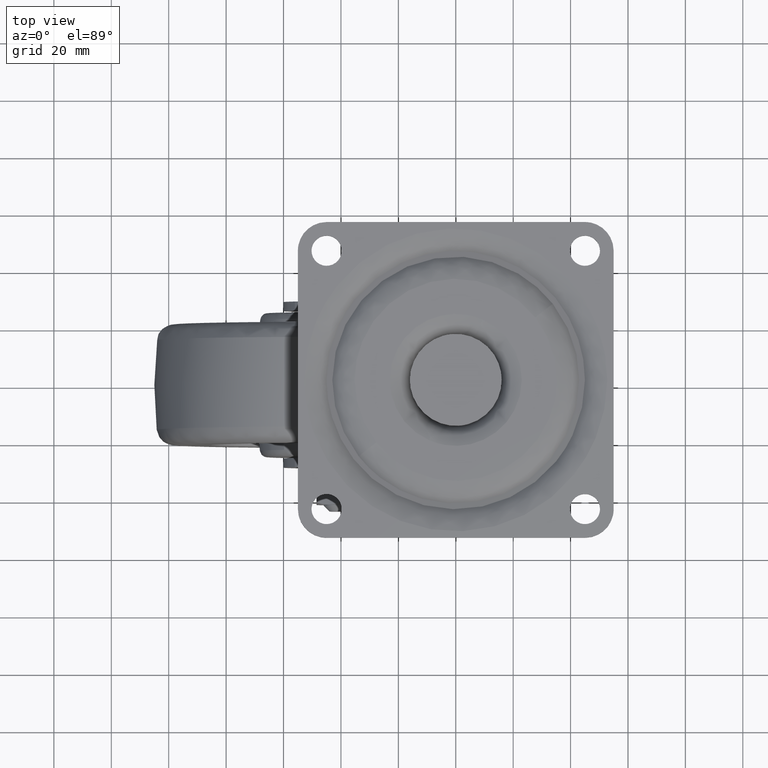
[diagram: clean part render]
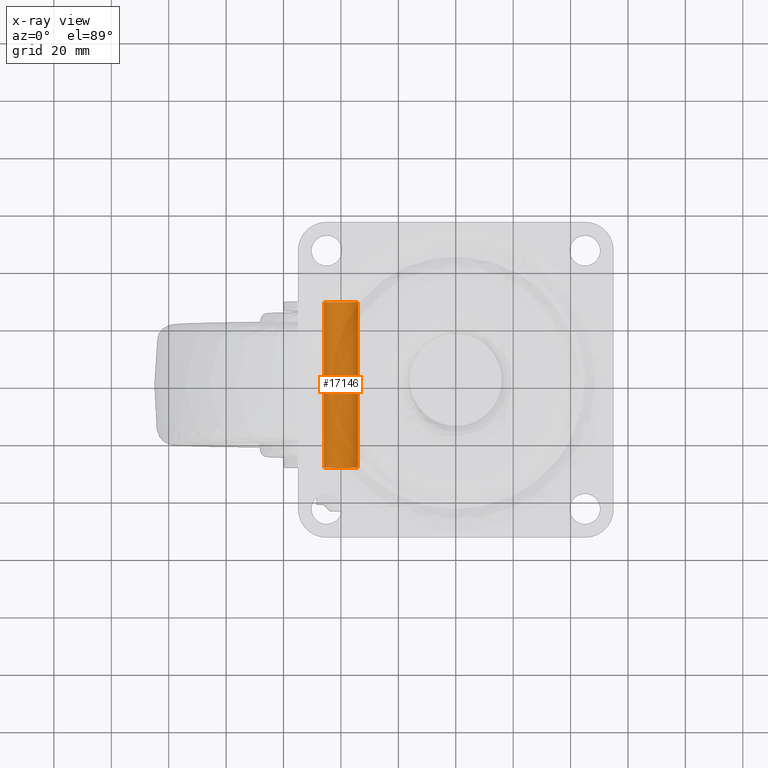
[diagram: x-ray — body ghosted, one internal face saturated and labeled with its STEP entity id]
A machine part, top view, then the same camera in x-ray: the body is ghosted and one INTERNAL B-rep face — a face not visible from any outside direction — is saturated and labeled: STEP entity #17146.
In plain terms, the highlighted face is a freeform B-spline surface patch.
Its self-contained STEP definition (entity closure, byte-faithful):
#17013=CARTESIAN_POINT('',(-40.0,-28.850000000000001,-106.0));
#17014=VERTEX_POINT('',#17013);
#17015=CARTESIAN_POINT('',(-45.988808790512337,-28.850000000000001,-100.366291237517400));
#17016=VERTEX_POINT('',#17015);
#17017=CARTESIAN_POINT('',(-40.0,-28.850000000000001,-106.0));
#17018=CARTESIAN_POINT('',(-45.644236401143068,-28.850000000000005,-106.000000000000010));
#17019=CARTESIAN_POINT('',(-45.988808790512344,-28.849999999999998,-100.366291237517430));
#17027=(BOUNDED_CURVE()B_SPLINE_CURVE(2,(#17017,#17018,#17019),.UNSPECIFIED.,.F.,.U.)B_SPLINE_CURVE_WITH_KNOTS((3,3),(0.500000000000000,0.739332962233086),.UNSPECIFIED.)CURVE()GEOMETRIC_REPRESENTATION_ITEM()RATIONAL_B_SPLINE_CURVE((1.0,0.719603993293572,0.976072041654165))REPRESENTATION_ITEM(''));
#17028=EDGE_CURVE('',#17014,#17016,#17027,.T.);
#17030=CARTESIAN_POINT('',(-34.011191209487663,-28.850000000000001,-99.633708762482570));
#17031=VERTEX_POINT('',#17030);
#17032=CARTESIAN_POINT('',(-34.011191209487656,-28.849999999999998,-99.633708762482556));
#17033=CARTESIAN_POINT('',(-33.999999999999993,-28.849999999999998,-99.816683420053891));
#17034=CARTESIAN_POINT('',(-34.0,-28.850000000000001,-100.0));
#17035=CARTESIAN_POINT('',(-34.000000000000007,-28.850000000000005,-106.0));
#17036=CARTESIAN_POINT('',(-40.0,-28.850000000000001,-106.0));
#17044=(BOUNDED_CURVE()B_SPLINE_CURVE(2,(#17032,#17033,#17034,#17035,#17036),.UNSPECIFIED.,.F.,.U.)B_SPLINE_CURVE_WITH_KNOTS((3,2,3),(0.239332962233086,0.250000000000000,0.500000000000000),.UNSPECIFIED.)CURVE()GEOMETRIC_REPRESENTATION_ITEM()RATIONAL_B_SPLINE_CURVE((0.976072041654164,0.987502787892975,1.0,0.707106781186548,1.0))REPRESENTATION_ITEM(''));
#17045=EDGE_CURVE('',#17031,#17014,#17044,.T.);
#17080=CARTESIAN_POINT('',(-34.011191209468798,-30.292500000000011,-99.633708762790860));
#17081=CARTESIAN_POINT('',(-33.644899972259658,-30.292500000000011,-105.622517553322070));
#17082=CARTESIAN_POINT('',(-39.633708762790860,-30.292500000000011,-105.988808790531190));
#17083=CARTESIAN_POINT('',(-45.622517553322062,-30.292500000000011,-106.355100027740330));
#17084=CARTESIAN_POINT('',(-45.988808790531202,-30.292500000000011,-100.366291237209100));
#17085=CARTESIAN_POINT('',(-34.011191209468798,30.328562500000011,-99.633708762790860));
#17086=CARTESIAN_POINT('',(-33.644899972259658,30.328562500000011,-105.622517553322070));
#17087=CARTESIAN_POINT('',(-39.633708762790860,30.328562500000011,-105.988808790531190));
#17088=CARTESIAN_POINT('',(-45.622517553322062,30.328562500000011,-106.355100027740330));
#17089=CARTESIAN_POINT('',(-45.988808790531202,30.328562500000011,-100.366291237209100));
#17097=(BOUNDED_SURFACE()B_SPLINE_SURFACE(2,1,((#17080,#17085),(#17081,#17086),(#17082,#17087),(#17083,#17088),(#17084,#17089)),.UNSPECIFIED.,.F.,.F.,.U.)B_SPLINE_SURFACE_WITH_KNOTS((3,2,3),(2,2),(0.0,9.941125496954292,19.882250993908588),(0.0,60.621062500000022),.UNSPECIFIED.)GEOMETRIC_REPRESENTATION_ITEM()RATIONAL_B_SPLINE_SURFACE(((1.0,1.0),(0.707106781186548,0.707106781186548),(1.0,1.0),(0.707106781186548,0.707106781186548),(1.0,1.0)))REPRESENTATION_ITEM('')SURFACE());
#17098=ORIENTED_EDGE('',*,*,#17045,.T.);
#17099=ORIENTED_EDGE('',*,*,#17028,.T.);
#17100=CARTESIAN_POINT('',(-45.988808790512337,28.850000000000001,-100.366291237517400));
#17101=VERTEX_POINT('',#17100);
#17102=CARTESIAN_POINT('',(-45.988808790512337,-28.850000000000001,-100.366291237517400));
#17103=CARTESIAN_POINT('',(-45.988808790512337,28.850000000000001,-100.366291237517400));
#17104=QUASI_UNIFORM_CURVE('',1,(#17102,#17103),.UNSPECIFIED.,.F.,.U.);
#17105=EDGE_CURVE('',#17016,#17101,#17104,.T.);
#17106=ORIENTED_EDGE('',*,*,#17105,.T.);
#17107=CARTESIAN_POINT('',(-40.0,28.850000000000001,-106.0));
#17108=VERTEX_POINT('',#17107);
#17109=CARTESIAN_POINT('',(-40.0,28.850000000000001,-106.0));
#17110=CARTESIAN_POINT('',(-45.644236401143068,28.850000000000005,-106.000000000000010));
#17111=CARTESIAN_POINT('',(-45.988808790512344,28.849999999999998,-100.366291237517430));
#17119=(BOUNDED_CURVE()B_SPLINE_CURVE(2,(#17109,#17110,#17111),.UNSPECIFIED.,.F.,.U.)B_SPLINE_CURVE_WITH_KNOTS((3,3),(0.500000000000000,0.739332962233086),.UNSPECIFIED.)CURVE()GEOMETRIC_REPRESENTATION_ITEM()RATIONAL_B_SPLINE_CURVE((1.0,0.719603993293572,0.976072041654165))REPRESENTATION_ITEM(''));
#17120=EDGE_CURVE('',#17108,#17101,#17119,.T.);
#17121=ORIENTED_EDGE('',*,*,#17120,.F.);
#17122=CARTESIAN_POINT('',(-34.011191209487649,28.850000000000001,-99.633708762482570));
#17123=VERTEX_POINT('',#17122);
#17124=CARTESIAN_POINT('',(-34.011191209487656,28.849999999999998,-99.633708762482570));
#17125=CARTESIAN_POINT('',(-34.0,28.850000000000005,-99.816683420053891));
#17126=CARTESIAN_POINT('',(-34.0,28.850000000000001,-100.0));
#17127=CARTESIAN_POINT('',(-34.000000000000007,28.850000000000005,-106.0));
#17128=CARTESIAN_POINT('',(-40.0,28.850000000000001,-106.0));
#17136=(BOUNDED_CURVE()B_SPLINE_CURVE(2,(#17124,#17125,#17126,#17127,#17128),.UNSPECIFIED.,.F.,.U.)B_SPLINE_CURVE_WITH_KNOTS((3,2,3),(0.239332962233086,0.250000000000000,0.500000000000000),.UNSPECIFIED.)CURVE()GEOMETRIC_REPRESENTATION_ITEM()RATIONAL_B_SPLINE_CURVE((0.976072041654165,0.987502787892976,1.0,0.707106781186548,1.0))REPRESENTATION_ITEM(''));
#17137=EDGE_CURVE('',#17123,#17108,#17136,.T.);
#17138=ORIENTED_EDGE('',*,*,#17137,.F.);
#17139=CARTESIAN_POINT('',(-34.011191209487663,-28.850000000000001,-99.633708762482570));
#17140=CARTESIAN_POINT('',(-34.011191209487649,28.850000000000001,-99.633708762482570));
#17141=QUASI_UNIFORM_CURVE('',1,(#17139,#17140),.UNSPECIFIED.,.F.,.U.);
#17142=EDGE_CURVE('',#17031,#17123,#17141,.T.);
#17143=ORIENTED_EDGE('',*,*,#17142,.F.);
#17144=EDGE_LOOP('',(#17098,#17099,#17106,#17121,#17138,#17143));
#17145=FACE_OUTER_BOUND('',#17144,.T.);
#17146=ADVANCED_FACE('',(#17145),#17097,.T.);